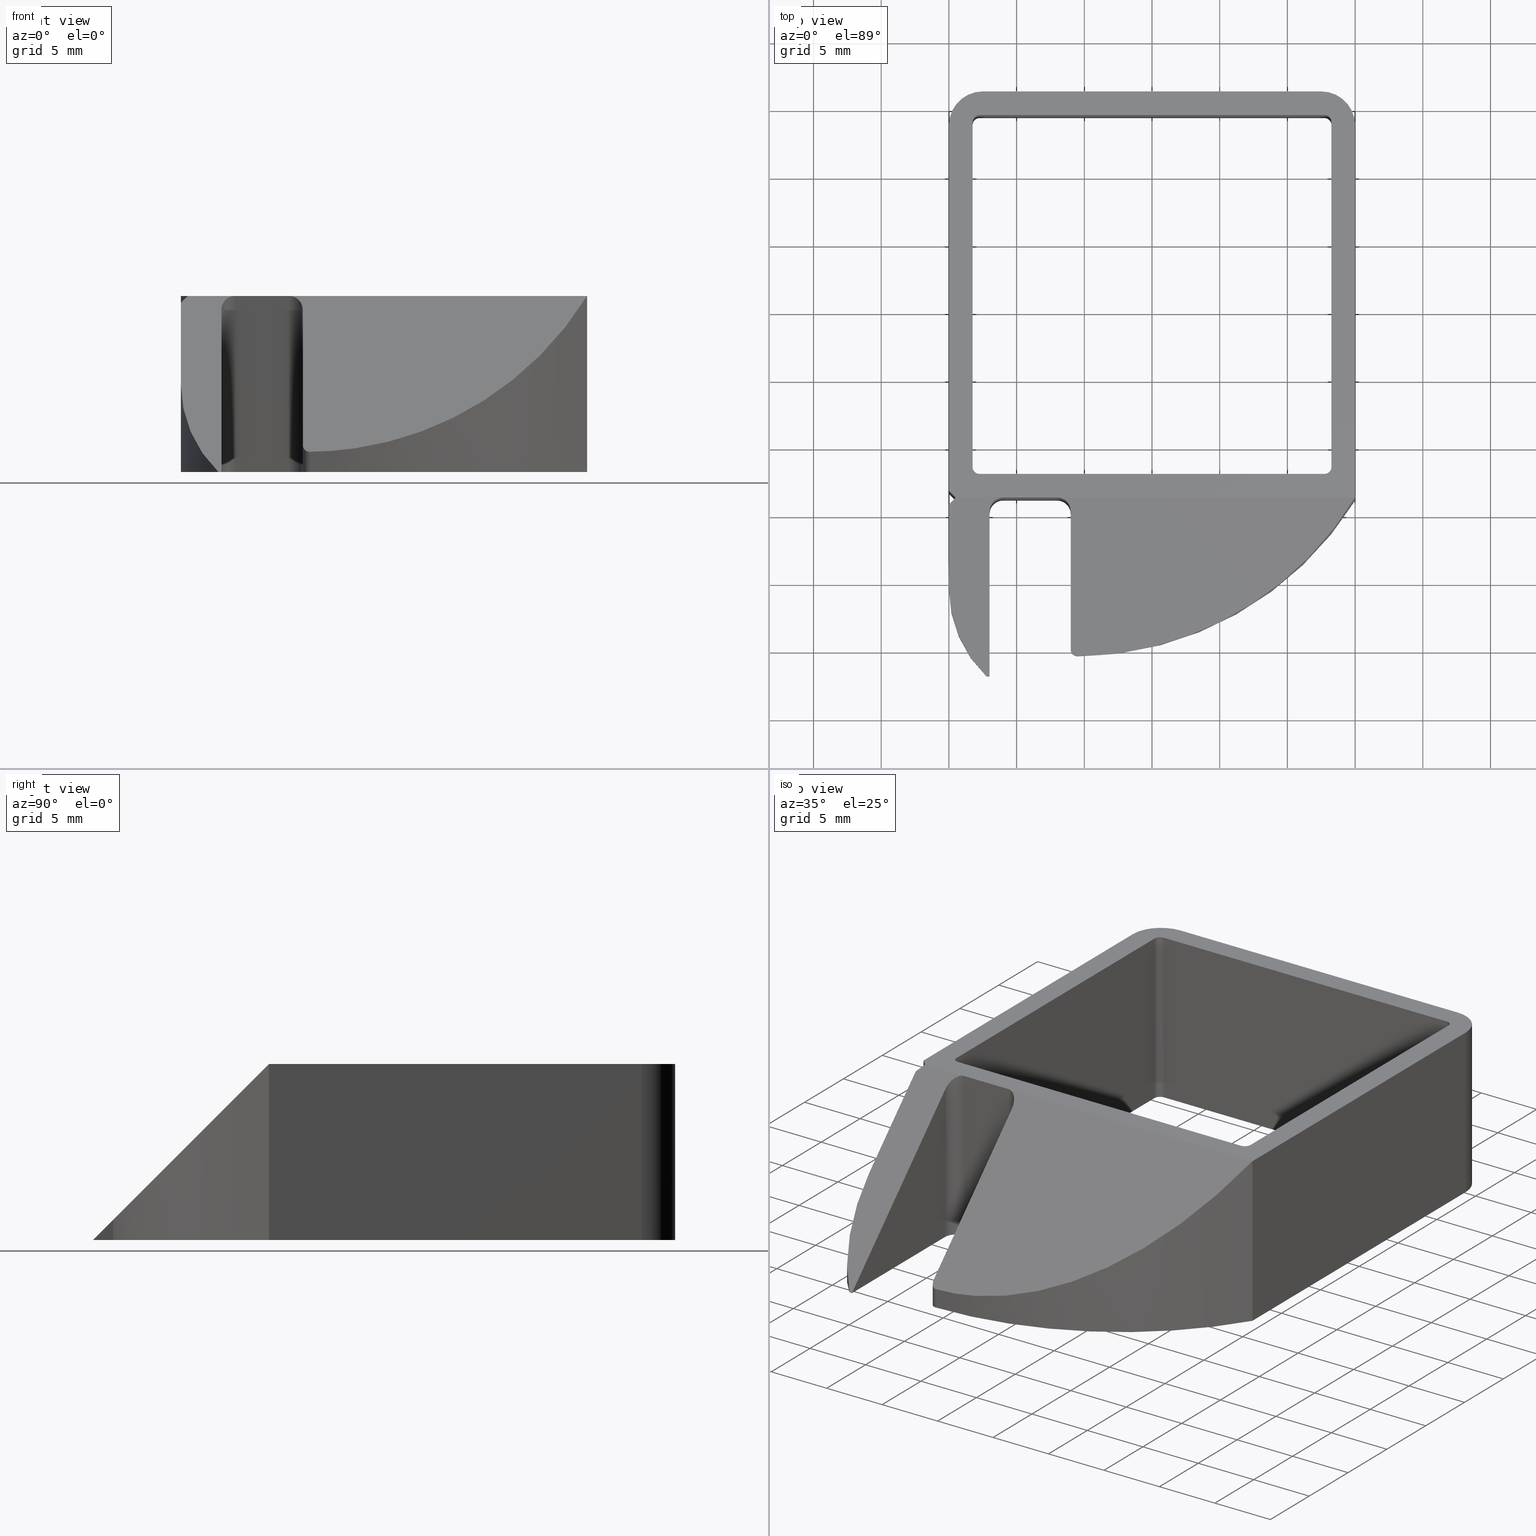
[diagram: canonical four-view strip — front | top / right | iso, engineering-drawing reading convention]
A machine part, canonical four-view strip (front | top / right | iso — engineering-drawing reading convention). The complete STEP part file that produces these views, byte-faithful:
ISO-10303-21;
HEADER;
/****************************************************************
 * Generated by software with PDE/Lib inside                    *
 * PDElib Version v4.4, created Mon 02/23/2004                  *
 * International Technegroup Inc. (www.iti-oh.com)              *
 ****************************************************************/
FILE_DESCRIPTION(('STEP AP203'),'2;1');
FILE_NAME('XF63011G.stp','2011-02-02T13:18:13',(''),(''),'2009.3.110','THINKDESIGN','');
FILE_SCHEMA(('CONFIG_CONTROL_DESIGN'));
ENDSEC;
DATA;
#2=CARTESIAN_POINT('',(-29.999999999999886,13.749999999999998,1.776357E-015));
#3=DIRECTION('',(-1.0,0.0,0.0));
#4=DIRECTION('',(0.0,-1.0,0.0));
#5=AXIS2_PLACEMENT_3D('',#2,#3,#4);
#6=PLANE('',#5);
#7=CARTESIAN_POINT('',(-29.999999999999886,13.749999999999998,1.776357E-015));
#8=VERTEX_POINT('',#7);
#9=CARTESIAN_POINT('',(-29.999999999999883,-13.249472180259092,0.0));
#10=VERTEX_POINT('',#9);
#11=CARTESIAN_POINT('',(-29.999999999999886,13.749999999999998,3.306482E-015));
#12=DIRECTION('',(0.0,-1.0,0.0));
#13=VECTOR('',#12,26.999472180259090);
#14=LINE('',#11,#13);
#15=EDGE_CURVE('',#8,#10,#14,.T.);
#16=ORIENTED_EDGE('',*,*,#15,.T.);
#17=CARTESIAN_POINT('',(-29.999999999999883,-13.249472180259092,12.999999999999773));
#18=VERTEX_POINT('',#17);
#19=CARTESIAN_POINT('',(-29.999999999999883,-13.249472180259092,0.0));
#20=DIRECTION('',(0.0,0.0,1.0));
#21=VECTOR('',#20,12.999999999999773);
#22=LINE('',#19,#21);
#23=EDGE_CURVE('',#10,#18,#22,.T.);
#24=ORIENTED_EDGE('',*,*,#23,.T.);
#25=CARTESIAN_POINT('',(-29.999999999999886,13.749999999999998,12.999999999999774));
#26=VERTEX_POINT('',#25);
#27=CARTESIAN_POINT('',(-29.999999999999886,13.749999999999998,12.999999999999776));
#28=DIRECTION('',(0.0,-1.0,0.0));
#29=VECTOR('',#28,26.999472180259090);
#30=LINE('',#27,#29);
#31=EDGE_CURVE('',#26,#18,#30,.T.);
#32=ORIENTED_EDGE('',*,*,#31,.F.);
#33=CARTESIAN_POINT('',(-29.999999999999886,13.749999999999998,1.776357E-015));
#34=DIRECTION('',(0.0,0.0,1.0));
#35=VECTOR('',#34,12.999999999999773);
#36=LINE('',#33,#35);
#37=EDGE_CURVE('',#8,#26,#36,.T.);
#38=ORIENTED_EDGE('',*,*,#37,.F.);
#39=EDGE_LOOP('',(#16,#24,#32,#38));
#40=FACE_OUTER_BOUND('',#39,.T.);
#41=ADVANCED_FACE('',(#40),#6,.T.);
#42=CARTESIAN_POINT('',(-29.999999999999883,-13.249472180259092,0.0));
#43=DIRECTION('',(-0.707479710767383,-0.706733654818065,-8.654991E-017));
#44=DIRECTION('',(0.706733654818065,-0.707479710767383,-8.664128E-017));
#45=AXIS2_PLACEMENT_3D('',#42,#43,#44);
#46=PLANE('',#45);
#47=CARTESIAN_POINT('',(-29.499999999999996,-13.750000000000002,0.0));
#48=VERTEX_POINT('',#47);
#49=CARTESIAN_POINT('',(-29.999999999999883,-13.249472180259092,6.129698E-017));
#50=DIRECTION('',(0.706733654818065,-0.707479710767383,-8.664128E-017));
#51=VECTOR('',#50,0.707480104550280);
#52=LINE('',#49,#51);
#53=EDGE_CURVE('',#10,#48,#52,.T.);
#54=ORIENTED_EDGE('',*,*,#53,.T.);
#55=CARTESIAN_POINT('',(-29.499999999999996,-13.750000000000002,12.999999999999773));
#56=VERTEX_POINT('',#55);
#57=CARTESIAN_POINT('',(-29.499999999999996,-13.750000000000002,0.0));
#58=DIRECTION('',(0.0,0.0,1.0));
#59=VECTOR('',#58,12.999999999999773);
#60=LINE('',#57,#59);
#61=EDGE_CURVE('',#48,#56,#60,.T.);
#62=ORIENTED_EDGE('',*,*,#61,.T.);
#63=CARTESIAN_POINT('',(-29.999999999999883,-13.249472180259092,12.999999999999773));
#64=DIRECTION('',(0.706733654818065,-0.707479710767383,0.0));
#65=VECTOR('',#64,0.707480104550280);
#66=LINE('',#63,#65);
#67=EDGE_CURVE('',#18,#56,#66,.T.);
#68=ORIENTED_EDGE('',*,*,#67,.F.);
#69=ORIENTED_EDGE('',*,*,#23,.F.);
#70=EDGE_LOOP('',(#54,#62,#68,#69));
#71=FACE_OUTER_BOUND('',#70,.T.);
#72=ADVANCED_FACE('',(#71),#46,.T.);
#73=CARTESIAN_POINT('',(-29.499999999999996,-13.750000000000002,0.0));
#74=DIRECTION('',(-0.709393185680435,0.704812959663884,8.631469E-017));
#75=DIRECTION('',(-0.704812959663884,-0.709393185680435,-8.687561E-017));
#76=AXIS2_PLACEMENT_3D('',#73,#74,#75);
#77=PLANE('',#76);
#78=CARTESIAN_POINT('',(-29.999999999999883,-14.253249249289185,0.0));
#79=VERTEX_POINT('',#78);
#80=CARTESIAN_POINT('',(-29.499999999999996,-13.750000000000002,0.0));
#81=DIRECTION('',(-0.704812959663884,-0.709393185680435,-8.687561E-017));
#82=VECTOR('',#81,0.709408067976403);
#83=LINE('',#80,#82);
#84=EDGE_CURVE('',#48,#79,#83,.T.);
#85=ORIENTED_EDGE('',*,*,#84,.T.);
#86=CARTESIAN_POINT('',(-29.999999999999883,-14.253249249289185,12.496750750710589));
#87=VERTEX_POINT('',#86);
#88=CARTESIAN_POINT('',(-29.999999999999883,-14.253249249289185,0.0));
#89=DIRECTION('',(0.0,0.0,1.0));
#90=VECTOR('',#89,12.496750750710596);
#91=LINE('',#88,#90);
#92=EDGE_CURVE('',#79,#87,#91,.T.);
#93=ORIENTED_EDGE('',*,*,#92,.T.);
#94=CARTESIAN_POINT('',(-29.499999999999996,-13.750000000000002,12.999999999999773));
#95=DIRECTION('',(-0.574857111362513,-0.578592819483597,-0.578592819483589));
#96=VECTOR('',#95,0.869781359779647);
#97=LINE('',#94,#96);
#98=EDGE_CURVE('',#56,#87,#97,.T.);
#99=ORIENTED_EDGE('',*,*,#98,.F.);
#100=ORIENTED_EDGE('',*,*,#61,.F.);
#101=EDGE_LOOP('',(#85,#93,#99,#100));
#102=FACE_OUTER_BOUND('',#101,.T.);
#103=ADVANCED_FACE('',(#102),#77,.T.);
#104=CARTESIAN_POINT('',(-29.999999999999883,-14.253249249289185,0.0));
#105=DIRECTION('',(-1.0,0.0,0.0));
#106=DIRECTION('',(0.0,-1.0,0.0));
#107=AXIS2_PLACEMENT_3D('',#104,#105,#106);
#108=PLANE('',#107);
#109=CARTESIAN_POINT('',(-29.999999999999883,-20.250000000000000,-4.440892E-016));
#110=VERTEX_POINT('',#109);
#111=CARTESIAN_POINT('',(-29.999999999999883,-14.253249249289185,0.0));
#112=DIRECTION('',(0.0,-1.0,0.0));
#113=VECTOR('',#112,5.996750750710815);
#114=LINE('',#111,#113);
#115=EDGE_CURVE('',#79,#110,#114,.T.);
#116=ORIENTED_EDGE('',*,*,#115,.T.);
#117=CARTESIAN_POINT('',(-29.999999999999883,-20.250000000000000,6.499999999999886));
#118=VERTEX_POINT('',#117);
#119=CARTESIAN_POINT('',(-29.999999999999883,-20.250000000000000,-4.440892E-016));
#120=DIRECTION('',(0.0,0.0,1.0));
#121=VECTOR('',#120,6.499999999999886);
#122=LINE('',#119,#121);
#123=EDGE_CURVE('',#110,#118,#122,.T.);
#124=ORIENTED_EDGE('',*,*,#123,.T.);
#125=CARTESIAN_POINT('',(-29.999999999999883,-14.253249249289185,12.496750750710596));
#126=DIRECTION('',(0.0,-0.707106781186554,-0.707106781186541));
#127=VECTOR('',#126,8.480686241826200);
#128=LINE('',#125,#127);
#129=EDGE_CURVE('',#87,#118,#128,.T.);
#130=ORIENTED_EDGE('',*,*,#129,.F.);
#131=ORIENTED_EDGE('',*,*,#92,.F.);
#132=EDGE_LOOP('',(#116,#124,#130,#131));
#133=FACE_OUTER_BOUND('',#132,.T.);
#134=ADVANCED_FACE('',(#133),#108,.T.);
#135=CARTESIAN_POINT('',(-20.999999999999883,-20.250000000000000,-4.440892E-016));
#136=DIRECTION('',(1.499760E-032,-1.224647E-016,1.0));
#137=DIRECTION('',(-1.0,-1.224647E-016,0.0));
#138=AXIS2_PLACEMENT_3D('',#135,#136,#137);
#139=CYLINDRICAL_SURFACE('',#138,9.0);
#140=CARTESIAN_POINT('',(-27.224949798994313,-26.750000000000000,-8.881784E-016));
#141=VERTEX_POINT('',#140);
#142=CARTESIAN_POINT('',(-20.999999999999886,-20.250000000000000,6.499999999999887));
#143=DIRECTION('',(-8.659561E-017,0.707106781186541,-0.707106781186554));
#144=DIRECTION('',(-8.659561E-017,0.707106781186554,0.707106781186541));
#145=AXIS2_PLACEMENT_3D('',#142,#143,#144);
#146=ELLIPSE('',#145,12.727922061357745,9.0);
#147=EDGE_CURVE('',#141,#118,#146,.T.);
#148=ORIENTED_EDGE('',*,*,#147,.T.);
#149=ORIENTED_EDGE('',*,*,#123,.F.);
#150=CARTESIAN_POINT('',(-20.999999999999883,-20.250000000000000,-4.440892E-016));
#151=DIRECTION('',(1.499760E-032,-1.224647E-016,1.0));
#152=DIRECTION('',(-1.0,-1.224647E-016,0.0));
#153=AXIS2_PLACEMENT_3D('',#150,#151,#152);
#154=CIRCLE('',#153,9.0);
#155=EDGE_CURVE('',#110,#141,#154,.T.);
#156=ORIENTED_EDGE('',*,*,#155,.T.);
#157=EDGE_LOOP('',(#148,#149,#156));
#158=FACE_OUTER_BOUND('',#157,.T.);
#159=ADVANCED_FACE('',(#158),#139,.T.);
#160=CARTESIAN_POINT('',(-26.999999999963844,-26.749999999997499,-8.881784E-016));
#161=DIRECTION('',(1.0,0.0,0.0));
#162=DIRECTION('',(0.0,1.0,0.0));
#163=AXIS2_PLACEMENT_3D('',#160,#161,#162);
#164=PLANE('',#163);
#165=CARTESIAN_POINT('',(-26.999999999963844,-26.749999999997499,-8.881784E-016));
#166=VERTEX_POINT('',#165);
#167=CARTESIAN_POINT('',(-26.999999999963848,-14.749999999974081,0.0));
#168=VERTEX_POINT('',#167);
#169=CARTESIAN_POINT('',(-26.999999999963844,-26.749999999997499,-8.881784E-016));
#170=DIRECTION('',(0.0,1.0,0.0));
#171=VECTOR('',#170,12.000000000023419);
#172=LINE('',#169,#171);
#173=EDGE_CURVE('',#166,#168,#172,.T.);
#174=ORIENTED_EDGE('',*,*,#173,.T.);
#175=CARTESIAN_POINT('',(-26.999999999963848,-14.749999999974081,12.000000000025807));
#176=VERTEX_POINT('',#175);
#177=CARTESIAN_POINT('',(-26.999999999963848,-14.749999999974081,0.0));
#178=DIRECTION('',(0.0,0.0,1.0));
#179=VECTOR('',#178,12.000000000025738);
#180=LINE('',#177,#179);
#181=EDGE_CURVE('',#168,#176,#180,.T.);
#182=ORIENTED_EDGE('',*,*,#181,.T.);
#183=CARTESIAN_POINT('',(-26.999999999963844,-26.749999999997499,-8.881784E-016));
#184=DIRECTION('',(0.0,0.707106781186479,0.707106781186616));
#185=VECTOR('',#184,16.970562748511899);
#186=LINE('',#183,#185);
#187=EDGE_CURVE('',#166,#176,#186,.T.);
#188=ORIENTED_EDGE('',*,*,#187,.F.);
#189=EDGE_LOOP('',(#174,#182,#188));
#190=FACE_OUTER_BOUND('',#189,.T.);
#191=ADVANCED_FACE('',(#190),#164,.T.);
#192=CARTESIAN_POINT('',(-25.999999999963848,-14.749999999974078,0.0));
#193=DIRECTION('',(-1.499760E-032,1.224647E-016,-1.0));
#194=DIRECTION('',(-1.0,-6.123234E-017,2.465190E-032));
#195=AXIS2_PLACEMENT_3D('',#192,#193,#194);
#196=CYLINDRICAL_SURFACE('',#195,1.0);
#197=CARTESIAN_POINT('',(-25.999999999963848,-13.749999999974078,0.0));
#198=VERTEX_POINT('',#197);
#199=CARTESIAN_POINT('',(-25.999999999963848,-14.749999999974078,0.0));
#200=DIRECTION('',(-1.499760E-032,1.224647E-016,-1.0));
#201=DIRECTION('',(-1.224647E-016,1.0,1.224647E-016));
#202=AXIS2_PLACEMENT_3D('',#199,#200,#201);
#203=CIRCLE('',#202,1.0);
#204=EDGE_CURVE('',#168,#198,#203,.T.);
#205=ORIENTED_EDGE('',*,*,#204,.T.);
#206=CARTESIAN_POINT('',(-25.999999999963848,-13.749999999974078,12.999999999999773));
#207=VERTEX_POINT('',#206);
#208=CARTESIAN_POINT('',(-25.999999999963848,-13.749999999974078,0.0));
#209=DIRECTION('',(0.0,0.0,1.0));
#210=VECTOR('',#209,12.999999999999773);
#211=LINE('',#208,#210);
#212=EDGE_CURVE('',#198,#207,#211,.T.);
#213=ORIENTED_EDGE('',*,*,#212,.T.);
#214=CARTESIAN_POINT('',(-25.999999999963851,-14.749999999974079,12.000000000025807));
#215=DIRECTION('',(8.659561E-017,-0.707106781186541,0.707106781186554));
#216=DIRECTION('',(-8.659561E-017,0.707106781186554,0.707106781186541));
#217=AXIS2_PLACEMENT_3D('',#214,#215,#216);
#218=ELLIPSE('',#217,1.414213562373083,1.0);
#219=EDGE_CURVE('',#207,#176,#218,.T.);
#220=ORIENTED_EDGE('',*,*,#219,.T.);
#221=ORIENTED_EDGE('',*,*,#181,.F.);
#222=EDGE_LOOP('',(#205,#213,#220,#221));
#223=FACE_OUTER_BOUND('',#222,.T.);
#224=ADVANCED_FACE('',(#223),#196,.F.);
#225=CARTESIAN_POINT('',(-25.999999999963848,-13.749999999974078,0.0));
#226=DIRECTION('',(0.0,-1.0,0.0));
#227=DIRECTION('',(1.0,0.0,0.0));
#228=AXIS2_PLACEMENT_3D('',#225,#226,#227);
#229=PLANE('',#228);
#230=CARTESIAN_POINT('',(-21.999999999963734,-13.749999999974078,0.0));
#231=VERTEX_POINT('',#230);
#232=CARTESIAN_POINT('',(-25.999999999963848,-13.749999999974078,0.0));
#233=DIRECTION('',(1.0,0.0,0.0));
#234=VECTOR('',#233,4.000000000000114);
#235=LINE('',#232,#234);
#236=EDGE_CURVE('',#198,#231,#235,.T.);
#237=ORIENTED_EDGE('',*,*,#236,.T.);
#238=CARTESIAN_POINT('',(-21.999999999963734,-13.749999999974078,12.999999999999773));
#239=VERTEX_POINT('',#238);
#240=CARTESIAN_POINT('',(-21.999999999963734,-13.749999999974078,0.0));
#241=DIRECTION('',(0.0,0.0,1.0));
#242=VECTOR('',#241,12.999999999999773);
#243=LINE('',#240,#242);
#244=EDGE_CURVE('',#231,#239,#243,.T.);
#245=ORIENTED_EDGE('',*,*,#244,.T.);
#246=CARTESIAN_POINT('',(-25.999999999963848,-13.749999999974078,12.999999999999773));
#247=DIRECTION('',(1.0,0.0,0.0));
#248=VECTOR('',#247,4.000000000000114);
#249=LINE('',#246,#248);
#250=EDGE_CURVE('',#207,#239,#249,.T.);
#251=ORIENTED_EDGE('',*,*,#250,.F.);
#252=ORIENTED_EDGE('',*,*,#212,.F.);
#253=EDGE_LOOP('',(#237,#245,#251,#252));
#254=FACE_OUTER_BOUND('',#253,.T.);
#255=ADVANCED_FACE('',(#254),#229,.T.);
#256=CARTESIAN_POINT('',(-21.999999999963734,-14.749999999974078,0.0));
#257=DIRECTION('',(-1.499760E-032,1.224647E-016,-1.0));
#258=DIRECTION('',(-6.123234E-017,1.0,1.224647E-016));
#259=AXIS2_PLACEMENT_3D('',#256,#257,#258);
#260=CYLINDRICAL_SURFACE('',#259,1.0);
#261=CARTESIAN_POINT('',(-20.999999999963734,-14.749999999974078,0.0));
#262=VERTEX_POINT('',#261);
#263=CARTESIAN_POINT('',(-21.999999999963734,-14.749999999974078,0.0));
#264=DIRECTION('',(-1.499760E-032,1.224647E-016,-1.0));
#265=DIRECTION('',(1.0,1.224647E-016,0.0));
#266=AXIS2_PLACEMENT_3D('',#263,#264,#265);
#267=CIRCLE('',#266,1.0);
#268=EDGE_CURVE('',#231,#262,#267,.T.);
#269=ORIENTED_EDGE('',*,*,#268,.T.);
#270=CARTESIAN_POINT('',(-20.999999999963734,-14.749999999974078,12.000000000025807));
#271=VERTEX_POINT('',#270);
#272=CARTESIAN_POINT('',(-20.999999999963734,-14.749999999974078,0.0));
#273=DIRECTION('',(0.0,0.0,1.0));
#274=VECTOR('',#273,12.000000000025738);
#275=LINE('',#272,#274);
#276=EDGE_CURVE('',#262,#271,#275,.T.);
#277=ORIENTED_EDGE('',*,*,#276,.T.);
#278=CARTESIAN_POINT('',(-21.999999999963737,-14.749999999974078,12.000000000025807));
#279=DIRECTION('',(8.659561E-017,-0.707106781186541,0.707106781186554));
#280=DIRECTION('',(-8.659561E-017,0.707106781186554,0.707106781186541));
#281=AXIS2_PLACEMENT_3D('',#278,#279,#280);
#282=ELLIPSE('',#281,1.414213562373083,1.0);
#283=EDGE_CURVE('',#271,#239,#282,.T.);
#284=ORIENTED_EDGE('',*,*,#283,.T.);
#285=ORIENTED_EDGE('',*,*,#244,.F.);
#286=EDGE_LOOP('',(#269,#277,#284,#285));
#287=FACE_OUTER_BOUND('',#286,.T.);
#288=ADVANCED_FACE('',(#287),#260,.F.);
#289=CARTESIAN_POINT('',(-20.999999999963734,-14.749999999974078,0.0));
#290=DIRECTION('',(-1.0,0.0,0.0));
#291=DIRECTION('',(0.0,-1.0,0.0));
#292=AXIS2_PLACEMENT_3D('',#289,#290,#291);
#293=PLANE('',#292);
#294=CARTESIAN_POINT('',(-20.999999999963730,-24.753660414799469,-6.661338E-016));
#295=VERTEX_POINT('',#294);
#296=CARTESIAN_POINT('',(-20.999999999963730,-14.749999999974079,5.589613E-016));
#297=DIRECTION('',(0.0,-1.0,0.0));
#298=VECTOR('',#297,10.003660414825390);
#299=LINE('',#296,#298);
#300=EDGE_CURVE('',#262,#295,#299,.T.);
#301=ORIENTED_EDGE('',*,*,#300,.T.);
#302=CARTESIAN_POINT('',(-20.999999999963730,-24.753660414799469,1.996339585200530));
#303=VERTEX_POINT('',#302);
#304=CARTESIAN_POINT('',(-20.999999999963730,-24.753660414799469,-6.661338E-016));
#305=DIRECTION('',(0.0,0.0,1.0));
#306=VECTOR('',#305,1.996339585200512);
#307=LINE('',#304,#306);
#308=EDGE_CURVE('',#295,#303,#307,.T.);
#309=ORIENTED_EDGE('',*,*,#308,.T.);
#310=CARTESIAN_POINT('',(-20.999999999963734,-14.749999999974078,12.000000000025807));
#311=DIRECTION('',(0.0,-0.707106781186553,-0.707106781186542));
#312=VECTOR('',#311,14.147312232020814);
#313=LINE('',#310,#312);
#314=EDGE_CURVE('',#271,#303,#313,.T.);
#315=ORIENTED_EDGE('',*,*,#314,.F.);
#316=ORIENTED_EDGE('',*,*,#276,.F.);
#317=EDGE_LOOP('',(#301,#309,#315,#316));
#318=FACE_OUTER_BOUND('',#317,.T.);
#319=ADVANCED_FACE('',(#318),#293,.T.);
#320=CARTESIAN_POINT('',(-20.499999999963730,-24.753660414799469,-6.661338E-016));
#321=DIRECTION('',(1.499760E-032,-1.224647E-016,1.0));
#322=DIRECTION('',(-1.0,-1.224647E-016,0.0));
#323=AXIS2_PLACEMENT_3D('',#320,#321,#322);
#324=CYLINDRICAL_SURFACE('',#323,0.500000000000000);
#325=CARTESIAN_POINT('',(-20.497180464879531,-25.253652464958122,-6.661338E-016));
#326=VERTEX_POINT('',#325);
#327=CARTESIAN_POINT('',(-20.499999999963730,-24.753660414799469,-6.661338E-016));
#328=DIRECTION('',(1.499760E-032,-1.224647E-016,1.0));
#329=DIRECTION('',(-1.0,-1.224647E-016,0.0));
#330=AXIS2_PLACEMENT_3D('',#327,#328,#329);
#331=CIRCLE('',#330,0.500000000000000);
#332=EDGE_CURVE('',#295,#326,#331,.T.);
#333=ORIENTED_EDGE('',*,*,#332,.T.);
#334=CARTESIAN_POINT('',(-20.497180464879531,-25.253652464958122,1.496347535041877));
#335=VERTEX_POINT('',#334);
#336=CARTESIAN_POINT('',(-20.497180464879531,-25.253652464958122,-6.661338E-016));
#337=DIRECTION('',(0.0,0.0,1.0));
#338=VECTOR('',#337,1.496347535041850);
#339=LINE('',#336,#338);
#340=EDGE_CURVE('',#326,#335,#339,.T.);
#341=ORIENTED_EDGE('',*,*,#340,.T.);
#342=CARTESIAN_POINT('',(-20.499999999963734,-24.753660414799469,1.996339585200529));
#343=DIRECTION('',(-8.659561E-017,0.707106781186541,-0.707106781186554));
#344=DIRECTION('',(-8.659561E-017,0.707106781186554,0.707106781186541));
#345=AXIS2_PLACEMENT_3D('',#342,#343,#344);
#346=ELLIPSE('',#345,0.707106781186541,0.500000000000000);
#347=EDGE_CURVE('',#335,#303,#346,.T.);
#348=ORIENTED_EDGE('',*,*,#347,.T.);
#349=ORIENTED_EDGE('',*,*,#308,.F.);
#350=EDGE_LOOP('',(#333,#341,#348,#349));
#351=FACE_OUTER_BOUND('',#350,.T.);
#352=ADVANCED_FACE('',(#351),#324,.T.);
#353=CARTESIAN_POINT('',(-20.633966547492491,-0.997187538485150,6.661338E-016));
#354=DIRECTION('',(1.482966E-032,-1.224647E-016,1.0));
#355=DIRECTION('',(0.005639070168398,-0.999984100317418,-1.224627E-016));
#356=AXIS2_PLACEMENT_3D('',#353,#354,#355);
#357=CYLINDRICAL_SURFACE('',#356,24.256850602697995);
#358=CARTESIAN_POINT('',(0.0,-13.749999999999998,0.0));
#359=VERTEX_POINT('',#358);
#360=CARTESIAN_POINT('',(-20.633966547492491,-0.997187538485150,6.661338E-016));
#361=DIRECTION('',(1.482966E-032,-1.224647E-016,1.0));
#362=DIRECTION('',(0.005639070168398,-0.999984100317418,-1.224627E-016));
#363=AXIS2_PLACEMENT_3D('',#360,#361,#362);
#364=CIRCLE('',#363,24.256850602697995);
#365=EDGE_CURVE('',#326,#359,#364,.T.);
#366=ORIENTED_EDGE('',*,*,#365,.T.);
#367=CARTESIAN_POINT('',(0.0,-13.749999999999998,12.999999999999773));
#368=VERTEX_POINT('',#367);
#369=CARTESIAN_POINT('',(0.0,-13.749999999999998,0.0));
#370=DIRECTION('',(0.0,0.0,1.0));
#371=VECTOR('',#370,12.999999999999773);
#372=LINE('',#369,#371);
#373=EDGE_CURVE('',#359,#368,#372,.T.);
#374=ORIENTED_EDGE('',*,*,#373,.T.);
#375=CARTESIAN_POINT('',(-20.633966547492491,-0.997187538485152,25.752812461514509));
#376=DIRECTION('',(-8.659561E-017,0.707106781186541,-0.707106781186554));
#377=DIRECTION('',(-8.659561E-017,0.707106781186554,0.707106781186541));
#378=AXIS2_PLACEMENT_3D('',#375,#376,#377);
#379=ELLIPSE('',#378,34.304367102793194,24.256850602697995);
#380=EDGE_CURVE('',#368,#335,#379,.T.);
#381=ORIENTED_EDGE('',*,*,#380,.T.);
#382=ORIENTED_EDGE('',*,*,#340,.F.);
#383=EDGE_LOOP('',(#366,#374,#381,#382));
#384=FACE_OUTER_BOUND('',#383,.T.);
#385=ADVANCED_FACE('',(#384),#357,.T.);
#386=CARTESIAN_POINT('',(0.0,-13.749999999999998,0.0));
#387=DIRECTION('',(1.0,0.0,0.0));
#388=DIRECTION('',(0.0,1.0,0.0));
#389=AXIS2_PLACEMENT_3D('',#386,#387,#388);
#390=PLANE('',#389);
#391=CARTESIAN_POINT('',(0.0,13.750000000000002,1.776357E-015));
#392=VERTEX_POINT('',#391);
#393=CARTESIAN_POINT('',(3.367779E-015,-13.749999999999998,-1.591422E-015));
#394=DIRECTION('',(0.0,1.0,0.0));
#395=VECTOR('',#394,27.500000000000000);
#396=LINE('',#393,#395);
#397=EDGE_CURVE('',#359,#392,#396,.T.);
#398=ORIENTED_EDGE('',*,*,#397,.T.);
#399=CARTESIAN_POINT('',(0.0,13.750000000000002,12.999999999999774));
#400=VERTEX_POINT('',#399);
#401=CARTESIAN_POINT('',(0.0,13.750000000000002,1.776357E-015));
#402=DIRECTION('',(0.0,0.0,1.0));
#403=VECTOR('',#402,12.999999999999773);
#404=LINE('',#401,#403);
#405=EDGE_CURVE('',#392,#400,#404,.T.);
#406=ORIENTED_EDGE('',*,*,#405,.T.);
#407=CARTESIAN_POINT('',(3.367779E-015,-13.749999999999998,12.999999999999771));
#408=DIRECTION('',(0.0,1.0,0.0));
#409=VECTOR('',#408,27.500000000000000);
#410=LINE('',#407,#409);
#411=EDGE_CURVE('',#368,#400,#410,.T.);
#412=ORIENTED_EDGE('',*,*,#411,.F.);
#413=ORIENTED_EDGE('',*,*,#373,.F.);
#414=EDGE_LOOP('',(#398,#406,#412,#413));
#415=FACE_OUTER_BOUND('',#414,.T.);
#416=ADVANCED_FACE('',(#415),#390,.T.);
#417=CARTESIAN_POINT('',(-2.500000000000000,13.750000000000002,1.776357E-015));
#418=DIRECTION('',(1.499760E-032,-1.224647E-016,1.0));
#419=DIRECTION('',(-1.0,-1.224647E-016,0.0));
#420=AXIS2_PLACEMENT_3D('',#417,#418,#419);
#421=CYLINDRICAL_SURFACE('',#420,2.500000000000000);
#422=CARTESIAN_POINT('',(-2.500000000000000,16.250000000000000,1.776357E-015));
#423=VERTEX_POINT('',#422);
#424=CARTESIAN_POINT('',(-2.500000000000000,13.750000000000002,1.776357E-015));
#425=DIRECTION('',(1.499760E-032,-1.224647E-016,1.0));
#426=DIRECTION('',(-1.0,-1.224647E-016,0.0));
#427=AXIS2_PLACEMENT_3D('',#424,#425,#426);
#428=CIRCLE('',#427,2.500000000000000);
#429=EDGE_CURVE('',#392,#423,#428,.T.);
#430=ORIENTED_EDGE('',*,*,#429,.T.);
#431=CARTESIAN_POINT('',(-2.500000000000000,16.250000000000000,12.999999999999774));
#432=VERTEX_POINT('',#431);
#433=CARTESIAN_POINT('',(-2.500000000000000,16.250000000000000,1.776357E-015));
#434=DIRECTION('',(0.0,0.0,1.0));
#435=VECTOR('',#434,12.999999999999773);
#436=LINE('',#433,#435);
#437=EDGE_CURVE('',#423,#432,#436,.T.);
#438=ORIENTED_EDGE('',*,*,#437,.T.);
#439=CARTESIAN_POINT('',(-2.500000000000000,13.750000000000002,12.999999999999774));
#440=DIRECTION('',(1.499760E-032,-1.224647E-016,1.0));
#441=DIRECTION('',(-1.0,-1.224647E-016,0.0));
#442=AXIS2_PLACEMENT_3D('',#439,#440,#441);
#443=CIRCLE('',#442,2.500000000000000);
#444=EDGE_CURVE('',#400,#432,#443,.T.);
#445=ORIENTED_EDGE('',*,*,#444,.F.);
#446=ORIENTED_EDGE('',*,*,#405,.F.);
#447=EDGE_LOOP('',(#430,#438,#445,#446));
#448=FACE_OUTER_BOUND('',#447,.T.);
#449=ADVANCED_FACE('',(#448),#421,.T.);
#450=CARTESIAN_POINT('',(-2.500000000000000,16.250000000000000,1.776357E-015));
#451=DIRECTION('',(0.0,1.0,0.0));
#452=DIRECTION('',(-1.0,0.0,0.0));
#453=AXIS2_PLACEMENT_3D('',#450,#451,#452);
#454=PLANE('',#453);
#455=CARTESIAN_POINT('',(-27.500000000000000,16.250000000000000,1.776357E-015));
#456=VERTEX_POINT('',#455);
#457=CARTESIAN_POINT('',(-2.500000000000000,16.250000000000004,1.776357E-015));
#458=DIRECTION('',(-1.0,0.0,0.0));
#459=VECTOR('',#458,25.0);
#460=LINE('',#457,#459);
#461=EDGE_CURVE('',#423,#456,#460,.T.);
#462=ORIENTED_EDGE('',*,*,#461,.T.);
#463=CARTESIAN_POINT('',(-27.500000000000000,16.250000000000000,12.999999999999774));
#464=VERTEX_POINT('',#463);
#465=CARTESIAN_POINT('',(-27.500000000000000,16.250000000000000,1.776357E-015));
#466=DIRECTION('',(0.0,0.0,1.0));
#467=VECTOR('',#466,12.999999999999773);
#468=LINE('',#465,#467);
#469=EDGE_CURVE('',#456,#464,#468,.T.);
#470=ORIENTED_EDGE('',*,*,#469,.T.);
#471=CARTESIAN_POINT('',(-2.500000000000000,16.250000000000004,12.999999999999774));
#472=DIRECTION('',(-1.0,0.0,0.0));
#473=VECTOR('',#472,25.0);
#474=LINE('',#471,#473);
#475=EDGE_CURVE('',#432,#464,#474,.T.);
#476=ORIENTED_EDGE('',*,*,#475,.F.);
#477=ORIENTED_EDGE('',*,*,#437,.F.);
#478=EDGE_LOOP('',(#462,#470,#476,#477));
#479=FACE_OUTER_BOUND('',#478,.T.);
#480=ADVANCED_FACE('',(#479),#454,.T.);
#481=CARTESIAN_POINT('',(-27.500000000000000,13.749999999999998,1.776357E-015));
#482=DIRECTION('',(1.499760E-032,-1.224647E-016,1.0));
#483=DIRECTION('',(-6.277862E-016,1.0,1.224647E-016));
#484=AXIS2_PLACEMENT_3D('',#481,#482,#483);
#485=CYLINDRICAL_SURFACE('',#484,2.500000000000000);
#486=CARTESIAN_POINT('',(-27.500000000000000,13.749999999999998,1.776357E-015));
#487=DIRECTION('',(1.499760E-032,-1.224647E-016,1.0));
#488=DIRECTION('',(-1.0,-1.224647E-016,0.0));
#489=AXIS2_PLACEMENT_3D('',#486,#487,#488);
#490=CIRCLE('',#489,2.500000000000000);
#491=EDGE_CURVE('',#456,#8,#490,.T.);
#492=ORIENTED_EDGE('',*,*,#491,.T.);
#493=ORIENTED_EDGE('',*,*,#37,.T.);
#494=CARTESIAN_POINT('',(-27.500000000000000,13.749999999999998,12.999999999999774));
#495=DIRECTION('',(1.499760E-032,-1.224647E-016,1.0));
#496=DIRECTION('',(-1.0,-1.224647E-016,0.0));
#497=AXIS2_PLACEMENT_3D('',#494,#495,#496);
#498=CIRCLE('',#497,2.500000000000000);
#499=EDGE_CURVE('',#464,#26,#498,.T.);
#500=ORIENTED_EDGE('',*,*,#499,.F.);
#501=ORIENTED_EDGE('',*,*,#469,.F.);
#502=EDGE_LOOP('',(#492,#493,#500,#501));
#503=FACE_OUTER_BOUND('',#502,.T.);
#504=ADVANCED_FACE('',(#503),#485,.T.);
#505=CARTESIAN_POINT('',(-2.249999999999886,14.000000000000002,1.776357E-015));
#506=DIRECTION('',(-1.499760E-032,1.224647E-016,-1.0));
#507=DIRECTION('',(1.837589E-015,1.0,1.224647E-016));
#508=AXIS2_PLACEMENT_3D('',#505,#506,#507);
#509=CYLINDRICAL_SURFACE('',#508,0.500000000000000);
#510=CARTESIAN_POINT('',(-2.249999999999886,14.500000000000002,1.776357E-015));
#511=VERTEX_POINT('',#510);
#512=CARTESIAN_POINT('',(-1.750000000000000,14.000000000000002,1.776357E-015));
#513=VERTEX_POINT('',#512);
#514=CARTESIAN_POINT('',(-2.249999999999886,14.000000000000002,1.776357E-015));
#515=DIRECTION('',(-1.499760E-032,1.224647E-016,-1.0));
#516=DIRECTION('',(-1.0,-1.224647E-016,0.0));
#517=AXIS2_PLACEMENT_3D('',#514,#515,#516);
#518=CIRCLE('',#517,0.500000000000000);
#519=EDGE_CURVE('',#511,#513,#518,.T.);
#520=ORIENTED_EDGE('',*,*,#519,.T.);
#521=CARTESIAN_POINT('',(-1.750000000000000,14.000000000000002,12.999999999999774));
#522=VERTEX_POINT('',#521);
#523=CARTESIAN_POINT('',(-1.750000000000000,14.000000000000002,1.776357E-015));
#524=DIRECTION('',(0.0,0.0,1.0));
#525=VECTOR('',#524,12.999999999999773);
#526=LINE('',#523,#525);
#527=EDGE_CURVE('',#513,#522,#526,.T.);
#528=ORIENTED_EDGE('',*,*,#527,.T.);
#529=CARTESIAN_POINT('',(-2.249999999999886,14.500000000000002,12.999999999999774));
#530=VERTEX_POINT('',#529);
#531=CARTESIAN_POINT('',(-2.249999999999886,14.000000000000002,12.999999999999774));
#532=DIRECTION('',(-1.499760E-032,1.224647E-016,-1.0));
#533=DIRECTION('',(-1.0,-1.224647E-016,0.0));
#534=AXIS2_PLACEMENT_3D('',#531,#532,#533);
#535=CIRCLE('',#534,0.500000000000000);
#536=EDGE_CURVE('',#530,#522,#535,.T.);
#537=ORIENTED_EDGE('',*,*,#536,.F.);
#538=CARTESIAN_POINT('',(-2.249999999999886,14.500000000000002,1.776357E-015));
#539=DIRECTION('',(0.0,0.0,1.0));
#540=VECTOR('',#539,12.999999999999773);
#541=LINE('',#538,#540);
#542=EDGE_CURVE('',#511,#530,#541,.T.);
#543=ORIENTED_EDGE('',*,*,#542,.F.);
#544=EDGE_LOOP('',(#520,#528,#537,#543));
#545=FACE_OUTER_BOUND('',#544,.T.);
#546=ADVANCED_FACE('',(#545),#509,.F.);
#547=CARTESIAN_POINT('',(-1.750000000000000,14.000000000000002,1.776357E-015));
#548=DIRECTION('',(-1.0,0.0,0.0));
#549=DIRECTION('',(0.0,-1.0,0.0));
#550=AXIS2_PLACEMENT_3D('',#547,#548,#549);
#551=PLANE('',#550);
#552=CARTESIAN_POINT('',(-1.749999999999886,-11.499999999999998,2.220446E-016));
#553=VERTEX_POINT('',#552);
#554=CARTESIAN_POINT('',(-1.750000000000000,14.000000000000002,1.776357E-015));
#555=DIRECTION('',(0.0,-1.0,0.0));
#556=VECTOR('',#555,25.500000000000000);
#557=LINE('',#554,#556);
#558=EDGE_CURVE('',#513,#553,#557,.T.);
#559=ORIENTED_EDGE('',*,*,#558,.T.);
#560=CARTESIAN_POINT('',(-1.749999999999886,-11.499999999999998,12.999999999999773));
#561=VERTEX_POINT('',#560);
#562=CARTESIAN_POINT('',(-1.749999999999886,-11.499999999999998,2.220446E-016));
#563=DIRECTION('',(0.0,0.0,1.0));
#564=VECTOR('',#563,12.999999999999773);
#565=LINE('',#562,#564);
#566=EDGE_CURVE('',#553,#561,#565,.T.);
#567=ORIENTED_EDGE('',*,*,#566,.T.);
#568=CARTESIAN_POINT('',(-1.750000000000000,14.000000000000002,12.999999999999774));
#569=DIRECTION('',(0.0,-1.0,0.0));
#570=VECTOR('',#569,25.500000000000000);
#571=LINE('',#568,#570);
#572=EDGE_CURVE('',#522,#561,#571,.T.);
#573=ORIENTED_EDGE('',*,*,#572,.F.);
#574=ORIENTED_EDGE('',*,*,#527,.F.);
#575=EDGE_LOOP('',(#559,#567,#573,#574));
#576=FACE_OUTER_BOUND('',#575,.T.);
#577=ADVANCED_FACE('',(#576),#551,.T.);
#578=CARTESIAN_POINT('',(-2.249999999999886,-11.499999999999998,2.220446E-016));
#579=DIRECTION('',(-1.499760E-032,1.224647E-016,-1.0));
#580=DIRECTION('',(1.0,-8.881784E-016,-1.237681E-031));
#581=AXIS2_PLACEMENT_3D('',#578,#579,#580);
#582=CYLINDRICAL_SURFACE('',#581,0.500000000000000);
#583=CARTESIAN_POINT('',(-2.249999999999886,-12.000000000000112,0.0));
#584=VERTEX_POINT('',#583);
#585=CARTESIAN_POINT('',(-2.249999999999886,-11.499999999999998,2.220446E-016));
#586=DIRECTION('',(-1.499760E-032,1.224647E-016,-1.0));
#587=DIRECTION('',(-1.0,-1.224647E-016,0.0));
#588=AXIS2_PLACEMENT_3D('',#585,#586,#587);
#589=CIRCLE('',#588,0.500000000000000);
#590=EDGE_CURVE('',#553,#584,#589,.T.);
#591=ORIENTED_EDGE('',*,*,#590,.T.);
#592=CARTESIAN_POINT('',(-2.249999999999886,-12.000000000000112,12.999999999999773));
#593=VERTEX_POINT('',#592);
#594=CARTESIAN_POINT('',(-2.249999999999886,-12.000000000000112,0.0));
#595=DIRECTION('',(0.0,0.0,1.0));
#596=VECTOR('',#595,12.999999999999773);
#597=LINE('',#594,#596);
#598=EDGE_CURVE('',#584,#593,#597,.T.);
#599=ORIENTED_EDGE('',*,*,#598,.T.);
#600=CARTESIAN_POINT('',(-2.249999999999886,-11.499999999999998,12.999999999999773));
#601=DIRECTION('',(-1.499760E-032,1.224647E-016,-1.0));
#602=DIRECTION('',(-1.0,-1.224647E-016,0.0));
#603=AXIS2_PLACEMENT_3D('',#600,#601,#602);
#604=CIRCLE('',#603,0.500000000000000);
#605=EDGE_CURVE('',#561,#593,#604,.T.);
#606=ORIENTED_EDGE('',*,*,#605,.F.);
#607=ORIENTED_EDGE('',*,*,#566,.F.);
#608=EDGE_LOOP('',(#591,#599,#606,#607));
#609=FACE_OUTER_BOUND('',#608,.T.);
#610=ADVANCED_FACE('',(#609),#582,.F.);
#611=CARTESIAN_POINT('',(-2.249999999999886,-12.000000000000112,0.0));
#612=DIRECTION('',(0.0,1.0,0.0));
#613=DIRECTION('',(-1.0,0.0,0.0));
#614=AXIS2_PLACEMENT_3D('',#611,#612,#613);
#615=PLANE('',#614);
#616=CARTESIAN_POINT('',(-27.750000000000000,-12.000000000000002,0.0));
#617=VERTEX_POINT('',#616);
#618=CARTESIAN_POINT('',(-2.249999999999886,-12.000000000000112,0.0));
#619=DIRECTION('',(-1.0,0.0,0.0));
#620=VECTOR('',#619,25.500000000000114);
#621=LINE('',#618,#620);
#622=EDGE_CURVE('',#584,#617,#621,.T.);
#623=ORIENTED_EDGE('',*,*,#622,.T.);
#624=CARTESIAN_POINT('',(-27.750000000000000,-12.000000000000002,12.999999999999773));
#625=VERTEX_POINT('',#624);
#626=CARTESIAN_POINT('',(-27.750000000000000,-12.000000000000002,0.0));
#627=DIRECTION('',(0.0,0.0,1.0));
#628=VECTOR('',#627,12.999999999999773);
#629=LINE('',#626,#628);
#630=EDGE_CURVE('',#617,#625,#629,.T.);
#631=ORIENTED_EDGE('',*,*,#630,.T.);
#632=CARTESIAN_POINT('',(-2.249999999999886,-12.000000000000112,12.999999999999773));
#633=DIRECTION('',(-1.0,0.0,0.0));
#634=VECTOR('',#633,25.500000000000114);
#635=LINE('',#632,#634);
#636=EDGE_CURVE('',#593,#625,#635,.T.);
#637=ORIENTED_EDGE('',*,*,#636,.F.);
#638=ORIENTED_EDGE('',*,*,#598,.F.);
#639=EDGE_LOOP('',(#623,#631,#637,#638));
#640=FACE_OUTER_BOUND('',#639,.T.);
#641=ADVANCED_FACE('',(#640),#615,.T.);
#642=CARTESIAN_POINT('',(-27.750000000000000,-11.500000000000002,2.220446E-016));
#643=DIRECTION('',(-1.499760E-032,1.224647E-016,-1.0));
#644=DIRECTION('',(-3.828569E-016,-1.0,-1.224647E-016));
#645=AXIS2_PLACEMENT_3D('',#642,#643,#644);
#646=CYLINDRICAL_SURFACE('',#645,0.500000000000000);
#647=CARTESIAN_POINT('',(-28.249999999999886,-11.500000000000002,2.220446E-016));
#648=VERTEX_POINT('',#647);
#649=CARTESIAN_POINT('',(-27.750000000000000,-11.500000000000002,2.220446E-016));
#650=DIRECTION('',(-1.499760E-032,1.224647E-016,-1.0));
#651=DIRECTION('',(-1.0,-1.224647E-016,0.0));
#652=AXIS2_PLACEMENT_3D('',#649,#650,#651);
#653=CIRCLE('',#652,0.500000000000000);
#654=EDGE_CURVE('',#617,#648,#653,.T.);
#655=ORIENTED_EDGE('',*,*,#654,.T.);
#656=CARTESIAN_POINT('',(-28.249999999999886,-11.500000000000002,12.999999999999773));
#657=VERTEX_POINT('',#656);
#658=CARTESIAN_POINT('',(-28.249999999999886,-11.500000000000002,2.220446E-016));
#659=DIRECTION('',(0.0,0.0,1.0));
#660=VECTOR('',#659,12.999999999999773);
#661=LINE('',#658,#660);
#662=EDGE_CURVE('',#648,#657,#661,.T.);
#663=ORIENTED_EDGE('',*,*,#662,.T.);
#664=CARTESIAN_POINT('',(-27.750000000000000,-11.500000000000002,12.999999999999773));
#665=DIRECTION('',(-1.499760E-032,1.224647E-016,-1.0));
#666=DIRECTION('',(-1.0,-1.224647E-016,0.0));
#667=AXIS2_PLACEMENT_3D('',#664,#665,#666);
#668=CIRCLE('',#667,0.500000000000000);
#669=EDGE_CURVE('',#625,#657,#668,.T.);
#670=ORIENTED_EDGE('',*,*,#669,.F.);
#671=ORIENTED_EDGE('',*,*,#630,.F.);
#672=EDGE_LOOP('',(#655,#663,#670,#671));
#673=FACE_OUTER_BOUND('',#672,.T.);
#674=ADVANCED_FACE('',(#673),#646,.F.);
#675=CARTESIAN_POINT('',(-28.249999999999886,-11.500000000000002,2.220446E-016));
#676=DIRECTION('',(1.0,0.0,0.0));
#677=DIRECTION('',(0.0,1.0,0.0));
#678=AXIS2_PLACEMENT_3D('',#675,#676,#677);
#679=PLANE('',#678);
#680=CARTESIAN_POINT('',(-28.250000000000000,13.999999999999998,1.776357E-015));
#681=VERTEX_POINT('',#680);
#682=CARTESIAN_POINT('',(-28.249999999999886,-11.500000000000002,2.220446E-016));
#683=DIRECTION('',(0.0,1.0,0.0));
#684=VECTOR('',#683,25.500000000000000);
#685=LINE('',#682,#684);
#686=EDGE_CURVE('',#648,#681,#685,.T.);
#687=ORIENTED_EDGE('',*,*,#686,.T.);
#688=CARTESIAN_POINT('',(-28.250000000000000,13.999999999999998,12.999999999999774));
#689=VERTEX_POINT('',#688);
#690=CARTESIAN_POINT('',(-28.250000000000000,13.999999999999998,1.776357E-015));
#691=DIRECTION('',(0.0,0.0,1.0));
#692=VECTOR('',#691,12.999999999999773);
#693=LINE('',#690,#692);
#694=EDGE_CURVE('',#681,#689,#693,.T.);
#695=ORIENTED_EDGE('',*,*,#694,.T.);
#696=CARTESIAN_POINT('',(-28.249999999999886,-11.500000000000002,12.999999999999773));
#697=DIRECTION('',(0.0,1.0,0.0));
#698=VECTOR('',#697,25.500000000000000);
#699=LINE('',#696,#698);
#700=EDGE_CURVE('',#657,#689,#699,.T.);
#701=ORIENTED_EDGE('',*,*,#700,.F.);
#702=ORIENTED_EDGE('',*,*,#662,.F.);
#703=EDGE_LOOP('',(#687,#695,#701,#702));
#704=FACE_OUTER_BOUND('',#703,.T.);
#705=ADVANCED_FACE('',(#704),#679,.T.);
#706=CARTESIAN_POINT('',(-27.750000000000000,13.999999999999998,1.776357E-015));
#707=DIRECTION('',(-1.499760E-032,1.224647E-016,-1.0));
#708=DIRECTION('',(-1.0,-1.224647E-016,0.0));
#709=AXIS2_PLACEMENT_3D('',#706,#707,#708);
#710=CYLINDRICAL_SURFACE('',#709,0.500000000000000);
#711=CARTESIAN_POINT('',(-27.750000000000000,14.499999999999998,1.776357E-015));
#712=VERTEX_POINT('',#711);
#713=CARTESIAN_POINT('',(-27.750000000000000,13.999999999999998,1.776357E-015));
#714=DIRECTION('',(-1.499760E-032,1.224647E-016,-1.0));
#715=DIRECTION('',(-1.0,-1.224647E-016,0.0));
#716=AXIS2_PLACEMENT_3D('',#713,#714,#715);
#717=CIRCLE('',#716,0.500000000000000);
#718=EDGE_CURVE('',#681,#712,#717,.T.);
#719=ORIENTED_EDGE('',*,*,#718,.T.);
#720=CARTESIAN_POINT('',(-27.750000000000000,14.499999999999998,12.999999999999774));
#721=VERTEX_POINT('',#720);
#722=CARTESIAN_POINT('',(-27.750000000000000,14.499999999999998,1.776357E-015));
#723=DIRECTION('',(0.0,0.0,1.0));
#724=VECTOR('',#723,12.999999999999773);
#725=LINE('',#722,#724);
#726=EDGE_CURVE('',#712,#721,#725,.T.);
#727=ORIENTED_EDGE('',*,*,#726,.T.);
#728=CARTESIAN_POINT('',(-27.750000000000000,13.999999999999998,12.999999999999774));
#729=DIRECTION('',(-1.499760E-032,1.224647E-016,-1.0));
#730=DIRECTION('',(-1.0,-1.224647E-016,0.0));
#731=AXIS2_PLACEMENT_3D('',#728,#729,#730);
#732=CIRCLE('',#731,0.500000000000000);
#733=EDGE_CURVE('',#689,#721,#732,.T.);
#734=ORIENTED_EDGE('',*,*,#733,.F.);
#735=ORIENTED_EDGE('',*,*,#694,.F.);
#736=EDGE_LOOP('',(#719,#727,#734,#735));
#737=FACE_OUTER_BOUND('',#736,.T.);
#738=ADVANCED_FACE('',(#737),#710,.F.);
#739=CARTESIAN_POINT('',(-27.750000000000000,14.499999999999998,1.776357E-015));
#740=DIRECTION('',(0.0,-1.0,0.0));
#741=DIRECTION('',(1.0,0.0,0.0));
#742=AXIS2_PLACEMENT_3D('',#739,#740,#741);
#743=PLANE('',#742);
#744=CARTESIAN_POINT('',(-27.750000000000000,14.499999999999998,1.776357E-015));
#745=DIRECTION('',(1.0,0.0,0.0));
#746=VECTOR('',#745,25.500000000000114);
#747=LINE('',#744,#746);
#748=EDGE_CURVE('',#712,#511,#747,.T.);
#749=ORIENTED_EDGE('',*,*,#748,.T.);
#750=ORIENTED_EDGE('',*,*,#542,.T.);
#751=CARTESIAN_POINT('',(-27.750000000000000,14.499999999999998,12.999999999999774));
#752=DIRECTION('',(1.0,0.0,0.0));
#753=VECTOR('',#752,25.500000000000114);
#754=LINE('',#751,#753);
#755=EDGE_CURVE('',#721,#530,#754,.T.);
#756=ORIENTED_EDGE('',*,*,#755,.F.);
#757=ORIENTED_EDGE('',*,*,#726,.F.);
#758=EDGE_LOOP('',(#749,#750,#756,#757));
#759=FACE_OUTER_BOUND('',#758,.T.);
#760=ADVANCED_FACE('',(#759),#743,.T.);
#761=CARTESIAN_POINT('',(3.000120002173503,20.550120002246448,1.998401E-015));
#762=DIRECTION('',(0.0,0.0,1.0));
#763=DIRECTION('',(-1.0,0.0,0.0));
#764=AXIS2_PLACEMENT_3D('',#761,#762,#763);
#765=PLANE('',#764);
#766=ORIENTED_EDGE('',*,*,#491,.F.);
#767=ORIENTED_EDGE('',*,*,#461,.F.);
#768=ORIENTED_EDGE('',*,*,#429,.F.);
#769=ORIENTED_EDGE('',*,*,#397,.F.);
#770=ORIENTED_EDGE('',*,*,#365,.F.);
#771=ORIENTED_EDGE('',*,*,#332,.F.);
#772=ORIENTED_EDGE('',*,*,#300,.F.);
#773=ORIENTED_EDGE('',*,*,#268,.F.);
#774=ORIENTED_EDGE('',*,*,#236,.F.);
#775=ORIENTED_EDGE('',*,*,#204,.F.);
#776=ORIENTED_EDGE('',*,*,#173,.F.);
#777=CARTESIAN_POINT('',(-27.224949798994313,-26.750000000000000,-8.881784E-016));
#778=DIRECTION('',(1.0,1.111853E-011,1.361527E-027));
#779=VECTOR('',#778,0.224949799030469);
#780=LINE('',#777,#779);
#781=EDGE_CURVE('',#141,#166,#780,.T.);
#782=ORIENTED_EDGE('',*,*,#781,.F.);
#783=ORIENTED_EDGE('',*,*,#155,.F.);
#784=ORIENTED_EDGE('',*,*,#115,.F.);
#785=ORIENTED_EDGE('',*,*,#84,.F.);
#786=ORIENTED_EDGE('',*,*,#53,.F.);
#787=ORIENTED_EDGE('',*,*,#15,.F.);
#788=EDGE_LOOP('',(#766,#767,#768,#769,#770,#771,#772,#773,#774,#775,#776,#782,#783,#784,#785,#786,#787));
#789=FACE_OUTER_BOUND('',#788,.T.);
#790=ORIENTED_EDGE('',*,*,#748,.F.);
#791=ORIENTED_EDGE('',*,*,#718,.F.);
#792=ORIENTED_EDGE('',*,*,#686,.F.);
#793=ORIENTED_EDGE('',*,*,#654,.F.);
#794=ORIENTED_EDGE('',*,*,#622,.F.);
#795=ORIENTED_EDGE('',*,*,#590,.F.);
#796=ORIENTED_EDGE('',*,*,#558,.F.);
#797=ORIENTED_EDGE('',*,*,#519,.F.);
#798=EDGE_LOOP('',(#790,#791,#792,#793,#794,#795,#796,#797));
#799=FACE_BOUND('',#798,.T.);
#800=CARTESIAN_POINT('',(-2.088775840096901,-13.749999999999998,0.0));
#801=VERTEX_POINT('',#800);
#802=CARTESIAN_POINT('',(-19.249999999994994,-23.461447166823291,-6.661338E-016));
#803=VERTEX_POINT('',#802);
#804=CARTESIAN_POINT('',(-20.633966547519325,-0.997187538526987,6.661338E-016));
#805=DIRECTION('',(-1.540744E-032,1.224647E-016,-1.000000000000000));
#806=DIRECTION('',(0.061490902123748,-0.998107643972336,-1.222329E-016));
#807=AXIS2_PLACEMENT_3D('',#804,#805,#806);
#808=CIRCLE('',#807,22.506850602698048);
#809=EDGE_CURVE('',#801,#803,#808,.T.);
#810=ORIENTED_EDGE('',*,*,#809,.F.);
#811=CARTESIAN_POINT('',(-19.249999999999883,-13.749999999999998,0.0));
#812=VERTEX_POINT('',#811);
#813=CARTESIAN_POINT('',(-19.249999999999883,-13.749999999999998,0.0));
#814=DIRECTION('',(1.0,0.0,0.0));
#815=VECTOR('',#814,17.161224159902986);
#816=LINE('',#813,#815);
#817=EDGE_CURVE('',#812,#801,#816,.T.);
#818=ORIENTED_EDGE('',*,*,#817,.F.);
#819=CARTESIAN_POINT('',(-19.249999999994994,-23.461447166823291,-6.661338E-016));
#820=DIRECTION('',(-5.033785E-013,1.0,1.224647E-016));
#821=VECTOR('',#820,9.711447166823291);
#822=LINE('',#819,#821);
#823=EDGE_CURVE('',#803,#812,#822,.T.);
#824=ORIENTED_EDGE('',*,*,#823,.F.);
#825=EDGE_LOOP('',(#810,#818,#824));
#826=FACE_BOUND('',#825,.T.);
#827=ADVANCED_FACE('',(#789,#799,#826),#765,.F.);
#828=CARTESIAN_POINT('',(3.000120002173503,20.550120002246448,12.999999999999776));
#829=DIRECTION('',(0.0,0.0,1.0));
#830=DIRECTION('',(-1.0,0.0,0.0));
#831=AXIS2_PLACEMENT_3D('',#828,#829,#830);
#832=PLANE('',#831);
#833=ORIENTED_EDGE('',*,*,#31,.T.);
#834=ORIENTED_EDGE('',*,*,#67,.T.);
#835=CARTESIAN_POINT('',(-29.499999999999996,-13.750000000000002,12.999999999999773));
#836=DIRECTION('',(1.0,0.0,0.0));
#837=VECTOR('',#836,3.500000000036152);
#838=LINE('',#835,#837);
#839=EDGE_CURVE('',#56,#207,#838,.T.);
#840=ORIENTED_EDGE('',*,*,#839,.T.);
#841=ORIENTED_EDGE('',*,*,#250,.T.);
#842=CARTESIAN_POINT('',(-21.999999999963730,-13.750000000000000,12.999999999999773));
#843=DIRECTION('',(1.0,0.0,0.0));
#844=VECTOR('',#843,21.999999999963734);
#845=LINE('',#842,#844);
#846=EDGE_CURVE('',#239,#368,#845,.T.);
#847=ORIENTED_EDGE('',*,*,#846,.T.);
#848=ORIENTED_EDGE('',*,*,#411,.T.);
#849=ORIENTED_EDGE('',*,*,#444,.T.);
#850=ORIENTED_EDGE('',*,*,#475,.T.);
#851=ORIENTED_EDGE('',*,*,#499,.T.);
#852=EDGE_LOOP('',(#833,#834,#840,#841,#847,#848,#849,#850,#851));
#853=FACE_OUTER_BOUND('',#852,.T.);
#854=ORIENTED_EDGE('',*,*,#536,.T.);
#855=ORIENTED_EDGE('',*,*,#572,.T.);
#856=ORIENTED_EDGE('',*,*,#605,.T.);
#857=ORIENTED_EDGE('',*,*,#636,.T.);
#858=ORIENTED_EDGE('',*,*,#669,.T.);
#859=ORIENTED_EDGE('',*,*,#700,.T.);
#860=ORIENTED_EDGE('',*,*,#733,.T.);
#861=ORIENTED_EDGE('',*,*,#755,.T.);
#862=EDGE_LOOP('',(#854,#855,#856,#857,#858,#859,#860,#861));
#863=FACE_BOUND('',#862,.T.);
#864=ADVANCED_FACE('',(#853,#863),#832,.T.);
#865=CARTESIAN_POINT('',(-19.249999999999883,-13.749999999999998,0.0));
#866=DIRECTION('',(0.0,-1.0,0.0));
#867=DIRECTION('',(1.0,0.0,0.0));
#868=AXIS2_PLACEMENT_3D('',#865,#866,#867);
#869=PLANE('',#868);
#870=CARTESIAN_POINT('',(-19.249999999999883,-13.749999999999998,3.0));
#871=VERTEX_POINT('',#870);
#872=CARTESIAN_POINT('',(-19.249999999999883,-13.749999999999998,0.0));
#873=DIRECTION('',(0.0,0.0,1.0));
#874=VECTOR('',#873,3.0);
#875=LINE('',#872,#874);
#876=EDGE_CURVE('',#812,#871,#875,.T.);
#877=ORIENTED_EDGE('',*,*,#876,.F.);
#878=ORIENTED_EDGE('',*,*,#817,.T.);
#879=CARTESIAN_POINT('',(-2.088775840096901,-13.749999999999998,3.0));
#880=VERTEX_POINT('',#879);
#881=CARTESIAN_POINT('',(-2.088775840096901,-13.749999999999998,0.0));
#882=DIRECTION('',(0.0,0.0,1.0));
#883=VECTOR('',#882,3.0);
#884=LINE('',#881,#883);
#885=EDGE_CURVE('',#801,#880,#884,.T.);
#886=ORIENTED_EDGE('',*,*,#885,.T.);
#887=CARTESIAN_POINT('',(-19.249999999999883,-13.749999999999998,3.0));
#888=DIRECTION('',(1.0,0.0,0.0));
#889=VECTOR('',#888,17.161224159902986);
#890=LINE('',#887,#889);
#891=EDGE_CURVE('',#871,#880,#890,.T.);
#892=ORIENTED_EDGE('',*,*,#891,.F.);
#893=EDGE_LOOP('',(#877,#878,#886,#892));
#894=FACE_OUTER_BOUND('',#893,.T.);
#895=ADVANCED_FACE('',(#894),#869,.T.);
#896=CARTESIAN_POINT('',(-20.633966547519321,-0.997187538526987,6.661338E-016));
#897=DIRECTION('',(-1.540744E-032,1.224647E-016,-1.0));
#898=DIRECTION('',(0.823979819957543,-0.566619145725536,-6.939083E-017));
#899=AXIS2_PLACEMENT_3D('',#896,#897,#898);
#900=CYLINDRICAL_SURFACE('',#899,22.506850602698048);
#901=ORIENTED_EDGE('',*,*,#885,.F.);
#902=ORIENTED_EDGE('',*,*,#809,.T.);
#903=CARTESIAN_POINT('',(-19.249999999994994,-23.461447166823291,2.999999999999999));
#904=VERTEX_POINT('',#903);
#905=CARTESIAN_POINT('',(-19.249999999994994,-23.461447166823291,-6.661338E-016));
#906=DIRECTION('',(0.0,0.0,1.0));
#907=VECTOR('',#906,3.0);
#908=LINE('',#905,#907);
#909=EDGE_CURVE('',#803,#904,#908,.T.);
#910=ORIENTED_EDGE('',*,*,#909,.T.);
#911=CARTESIAN_POINT('',(-20.633966547519325,-0.997187538526987,3.000000000000003));
#912=DIRECTION('',(-1.540744E-032,1.224647E-016,-1.000000000000000));
#913=DIRECTION('',(0.061490902123748,-0.998107643972336,-1.222329E-016));
#914=AXIS2_PLACEMENT_3D('',#911,#912,#913);
#915=CIRCLE('',#914,22.506850602698048);
#916=EDGE_CURVE('',#880,#904,#915,.T.);
#917=ORIENTED_EDGE('',*,*,#916,.F.);
#918=EDGE_LOOP('',(#901,#902,#910,#917));
#919=FACE_OUTER_BOUND('',#918,.T.);
#920=ADVANCED_FACE('',(#919),#900,.F.);
#921=CARTESIAN_POINT('',(-19.249999999994994,-23.461447166823291,-6.661338E-016));
#922=DIRECTION('',(1.0,5.035010E-013,6.164609E-029));
#923=DIRECTION('',(-5.035010E-013,1.0,1.224647E-016));
#924=AXIS2_PLACEMENT_3D('',#921,#922,#923);
#925=PLANE('',#924);
#926=CARTESIAN_POINT('',(-19.249999999994994,-23.461447166823291,2.999999999999999));
#927=DIRECTION('',(-5.033785E-013,1.0,1.371853E-016));
#928=VECTOR('',#927,9.711447166823291);
#929=LINE('',#926,#928);
#930=EDGE_CURVE('',#904,#871,#929,.T.);
#931=ORIENTED_EDGE('',*,*,#930,.F.);
#932=ORIENTED_EDGE('',*,*,#909,.F.);
#933=ORIENTED_EDGE('',*,*,#823,.T.);
#934=ORIENTED_EDGE('',*,*,#876,.T.);
#935=EDGE_LOOP('',(#931,#932,#933,#934));
#936=FACE_OUTER_BOUND('',#935,.T.);
#937=ADVANCED_FACE('',(#936),#925,.T.);
#938=CARTESIAN_POINT('',(-0.372533424058361,-24.432711883552656,2.999999999999999));
#939=DIRECTION('',(0.0,0.0,-1.0));
#940=DIRECTION('',(-1.0,0.0,0.0));
#941=AXIS2_PLACEMENT_3D('',#938,#939,#940);
#942=PLANE('',#941);
#943=ORIENTED_EDGE('',*,*,#891,.T.);
#944=ORIENTED_EDGE('',*,*,#916,.T.);
#945=ORIENTED_EDGE('',*,*,#930,.T.);
#946=EDGE_LOOP('',(#943,#944,#945));
#947=FACE_OUTER_BOUND('',#946,.T.);
#948=ADVANCED_FACE('',(#947),#942,.T.);
#949=CARTESIAN_POINT('',(-29.999999999999883,-13.750000000000002,12.999999999999773));
#950=DIRECTION('',(8.659561E-017,-0.707106781186541,0.707106781186554));
#951=DIRECTION('',(8.659561E-017,-0.707106781186554,-0.707106781186541));
#952=AXIS2_PLACEMENT_3D('',#949,#950,#951);
#953=PLANE('',#952);
#954=ORIENTED_EDGE('',*,*,#98,.T.);
#955=ORIENTED_EDGE('',*,*,#129,.T.);
#956=ORIENTED_EDGE('',*,*,#147,.F.);
#957=ORIENTED_EDGE('',*,*,#781,.T.);
#958=ORIENTED_EDGE('',*,*,#187,.T.);
#959=ORIENTED_EDGE('',*,*,#219,.F.);
#960=ORIENTED_EDGE('',*,*,#839,.F.);
#961=EDGE_LOOP('',(#954,#955,#956,#957,#958,#959,#960));
#962=FACE_OUTER_BOUND('',#961,.T.);
#963=ADVANCED_FACE('',(#962),#953,.T.);
#964=CARTESIAN_POINT('',(-29.999999999999883,-13.750000000000002,12.999999999999773));
#965=DIRECTION('',(8.659561E-017,-0.707106781186541,0.707106781186554));
#966=DIRECTION('',(8.659561E-017,-0.707106781186554,-0.707106781186541));
#967=AXIS2_PLACEMENT_3D('',#964,#965,#966);
#968=PLANE('',#967);
#969=ORIENTED_EDGE('',*,*,#283,.F.);
#970=ORIENTED_EDGE('',*,*,#314,.T.);
#971=ORIENTED_EDGE('',*,*,#347,.F.);
#972=ORIENTED_EDGE('',*,*,#380,.F.);
#973=ORIENTED_EDGE('',*,*,#846,.F.);
#974=EDGE_LOOP('',(#969,#970,#971,#972,#973));
#975=FACE_OUTER_BOUND('',#974,.T.);
#976=ADVANCED_FACE('',(#975),#968,.T.);
#977=CLOSED_SHELL('',(#41,#72,#103,#134,#159,#191,#224,#255,#288,#319,#352,#385,#416,#449,#480,#504,#546,#577,#610,#641,#674,#705,#738,#760,#827,#864,#895,#920,#937,#948,#963,#976));
#978=MANIFOLD_SOLID_BREP('',#977);
#984=(NAMED_UNIT(*)PLANE_ANGLE_UNIT()SI_UNIT($,.RADIAN.));
#985=DIMENSIONAL_EXPONENTS(0.0,0.0,0.0,0.0,0.0,0.0,0.0);
#986=PLANE_ANGLE_MEASURE_WITH_UNIT(PLANE_ANGLE_MEASURE(0.017453292500000),#984);
#990=(CONVERSION_BASED_UNIT('DEGREE',#986)NAMED_UNIT(#985)PLANE_ANGLE_UNIT());
#994=(NAMED_UNIT(*)SI_UNIT($,.STERADIAN.)SOLID_ANGLE_UNIT());
#998=(LENGTH_UNIT()NAMED_UNIT(*)SI_UNIT(.MILLI.,.METRE.));
#1000=UNCERTAINTY_MEASURE_WITH_UNIT(LENGTH_MEASURE(0.001000000000000),#998,'DISTANCE_ACCURACY_VALUE','');
#1002=(GEOMETRIC_REPRESENTATION_CONTEXT(3)GLOBAL_UNCERTAINTY_ASSIGNED_CONTEXT((#1000))GLOBAL_UNIT_ASSIGNED_CONTEXT((#990,#994,#998))REPRESENTATION_CONTEXT('thinkdesign','2009.3.110'));
#1003=ADVANCED_BREP_SHAPE_REPRESENTATION('',(#978),#1002);
#1004=APPLICATION_CONTEXT('configuration controlled 3D designs of mechanical parts and assemblies');
#1005=APPLICATION_PROTOCOL_DEFINITION('International Standard','config_control_design',1995,#1004);
#1006=MECHANICAL_CONTEXT('None',#1004,'mechanical');
#1007=PRODUCT('None','None','None',(#1006));
#1008=PRODUCT_RELATED_PRODUCT_CATEGORY('detail',$,(#1007));
#1009=PRODUCT_CATEGORY('part',$);
#1010=PRODUCT_CATEGORY_RELATIONSHIP('None','None',#1009,#1008);
#1011=PERSON('PERSON1','None','None',$,$,$);
#1012=ORGANIZATION('','None','None');
#1013=PERSON_AND_ORGANIZATION(#1011,#1012);
#1014=PERSON_AND_ORGANIZATION_ROLE('design_owner');
#1015=CC_DESIGN_PERSON_AND_ORGANIZATION_ASSIGNMENT(#1013,#1014,(#1007));
#1016=PRODUCT_DEFINITION_FORMATION_WITH_SPECIFIED_SOURCE('None','None',#1007,.NOT_KNOWN.);
#1017=PERSON('PERSON2','None','None',$,$,$);
#1018=ORGANIZATION('','None','None');
#1019=PERSON_AND_ORGANIZATION(#1017,#1018);
#1020=PERSON_AND_ORGANIZATION_ROLE('creator');
#1021=CC_DESIGN_PERSON_AND_ORGANIZATION_ASSIGNMENT(#1019,#1020,(#1016));
#1022=PERSON('PERSON3','None','None',$,$,$);
#1023=ORGANIZATION('','None','None');
#1024=PERSON_AND_ORGANIZATION(#1022,#1023);
#1025=PERSON_AND_ORGANIZATION_ROLE('part_supplier');
#1026=CC_DESIGN_PERSON_AND_ORGANIZATION_ASSIGNMENT(#1024,#1025,(#1016));
#1027=APPROVAL_STATUS('approved');
#1028=APPROVAL(#1027,'None');
#1029=PERSON('PERSON4','None','None',$,$,$);
#1030=ORGANIZATION('','None','None');
#1031=PERSON_AND_ORGANIZATION(#1029,#1030);
#1032=APPROVAL_ROLE('None');
#1033=APPROVAL_PERSON_ORGANIZATION(#1031,#1028,#1032);
#1034=CALENDAR_DATE(2011,2,2);
#1035=COORDINATED_UNIVERSAL_TIME_OFFSET(0,0,.AHEAD.);
#1036=LOCAL_TIME(13,18,13.0,#1035);
#1037=DATE_AND_TIME(#1034,#1036);
#1038=APPROVAL_DATE_TIME(#1037,#1028);
#1039=CC_DESIGN_APPROVAL(#1028,(#1016));
#1040=SECURITY_CLASSIFICATION_LEVEL('unclassified');
#1041=SECURITY_CLASSIFICATION('None','None',#1040);
#1042=CC_DESIGN_SECURITY_CLASSIFICATION(#1041,(#1016));
#1043=APPROVAL_STATUS('approved');
#1044=APPROVAL(#1043,'None');
#1045=PERSON('PERSON5','None','None',$,$,$);
#1046=ORGANIZATION('','None','None');
#1047=PERSON_AND_ORGANIZATION(#1045,#1046);
#1048=APPROVAL_ROLE('None');
#1049=APPROVAL_PERSON_ORGANIZATION(#1047,#1044,#1048);
#1050=CALENDAR_DATE(2011,2,2);
#1051=COORDINATED_UNIVERSAL_TIME_OFFSET(0,0,.AHEAD.);
#1052=LOCAL_TIME(13,18,13.0,#1051);
#1053=DATE_AND_TIME(#1050,#1052);
#1054=APPROVAL_DATE_TIME(#1053,#1044);
#1055=CC_DESIGN_APPROVAL(#1044,(#1041));
#1056=PERSON('PERSON6','None','None',$,$,$);
#1057=ORGANIZATION('','None','None');
#1058=PERSON_AND_ORGANIZATION(#1056,#1057);
#1059=PERSON_AND_ORGANIZATION_ROLE('classification_officer');
#1060=CC_DESIGN_PERSON_AND_ORGANIZATION_ASSIGNMENT(#1058,#1059,(#1041));
#1061=DATE_TIME_ROLE('classification_date');
#1062=CALENDAR_DATE(2011,2,2);
#1063=COORDINATED_UNIVERSAL_TIME_OFFSET(0,0,.AHEAD.);
#1064=LOCAL_TIME(13,18,13.0,#1063);
#1065=DATE_AND_TIME(#1062,#1064);
#1066=CC_DESIGN_DATE_AND_TIME_ASSIGNMENT(#1065,#1061,(#1041));
#1067=DESIGN_CONTEXT('part definition',#1004,'design');
#1068=DOCUMENT_TYPE('cad_filename');
#1069=DOCUMENT('None','None','None',#1068);
#1070=PRODUCT_DEFINITION_WITH_ASSOCIATED_DOCUMENTS('None','None',#1016,#1067,(#1069));
#1071=PERSON('PERSON7','None','None',$,$,$);
#1072=ORGANIZATION('','None','None');
#1073=PERSON_AND_ORGANIZATION(#1071,#1072);
#1074=PERSON_AND_ORGANIZATION_ROLE('creator');
#1075=CC_DESIGN_PERSON_AND_ORGANIZATION_ASSIGNMENT(#1073,#1074,(#1070));
#1076=DATE_TIME_ROLE('creation_date');
#1077=CALENDAR_DATE(2011,2,2);
#1078=COORDINATED_UNIVERSAL_TIME_OFFSET(0,0,.AHEAD.);
#1079=LOCAL_TIME(13,18,13.0,#1078);
#1080=DATE_AND_TIME(#1077,#1079);
#1081=CC_DESIGN_DATE_AND_TIME_ASSIGNMENT(#1080,#1076,(#1070));
#1082=APPROVAL_STATUS('approved');
#1083=APPROVAL(#1082,'None');
#1084=PERSON('PERSON8','None','None',$,$,$);
#1085=ORGANIZATION('','None','None');
#1086=PERSON_AND_ORGANIZATION(#1084,#1085);
#1087=APPROVAL_ROLE('None');
#1088=APPROVAL_PERSON_ORGANIZATION(#1086,#1083,#1087);
#1089=CALENDAR_DATE(2011,2,2);
#1090=COORDINATED_UNIVERSAL_TIME_OFFSET(0,0,.AHEAD.);
#1091=LOCAL_TIME(13,18,13.0,#1090);
#1092=DATE_AND_TIME(#1089,#1091);
#1093=APPROVAL_DATE_TIME(#1092,#1083);
#1094=CC_DESIGN_APPROVAL(#1083,(#1070));
#1095=PRODUCT_DEFINITION_SHAPE('None','None',#1070);
#1096=SHAPE_DEFINITION_REPRESENTATION(#1095,#1003);
#1097=DIMENSIONAL_EXPONENTS(0.0,0.0,0.0,0.0,0.0,0.0,0.0);
#1098=DIMENSIONAL_EXPONENTS(1.0,0.0,0.0,0.0,0.0,0.0,0.0);
ENDSEC;
END-ISO-10303-21;
